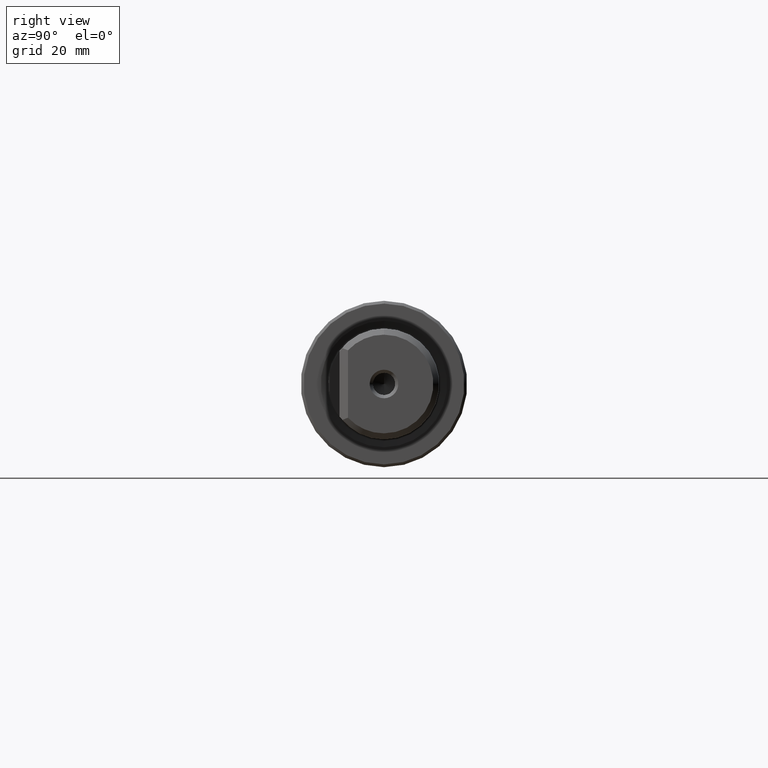
[diagram: clean part render]
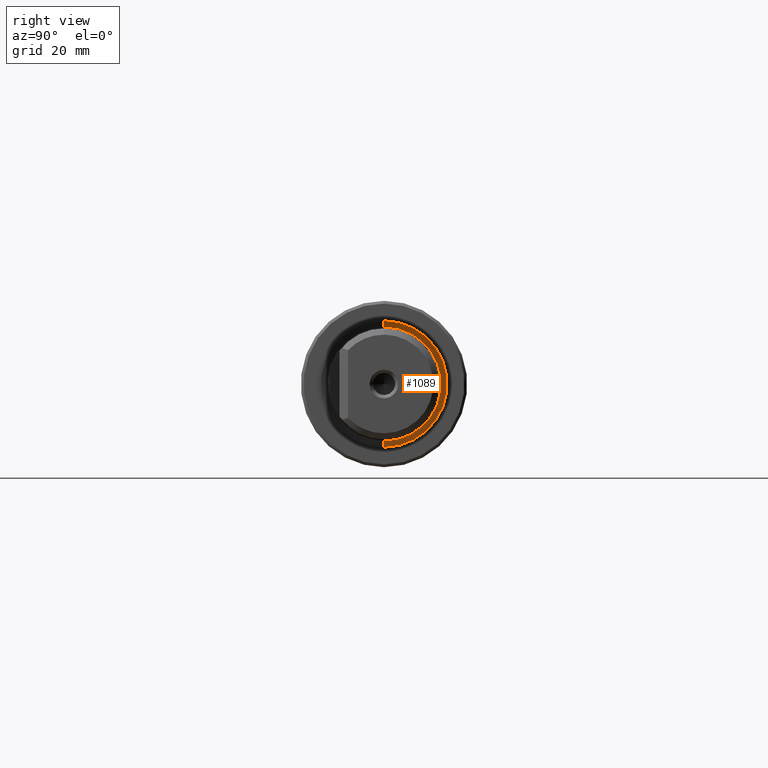
[diagram: same view with one face highlighted and labeled with its STEP entity id]
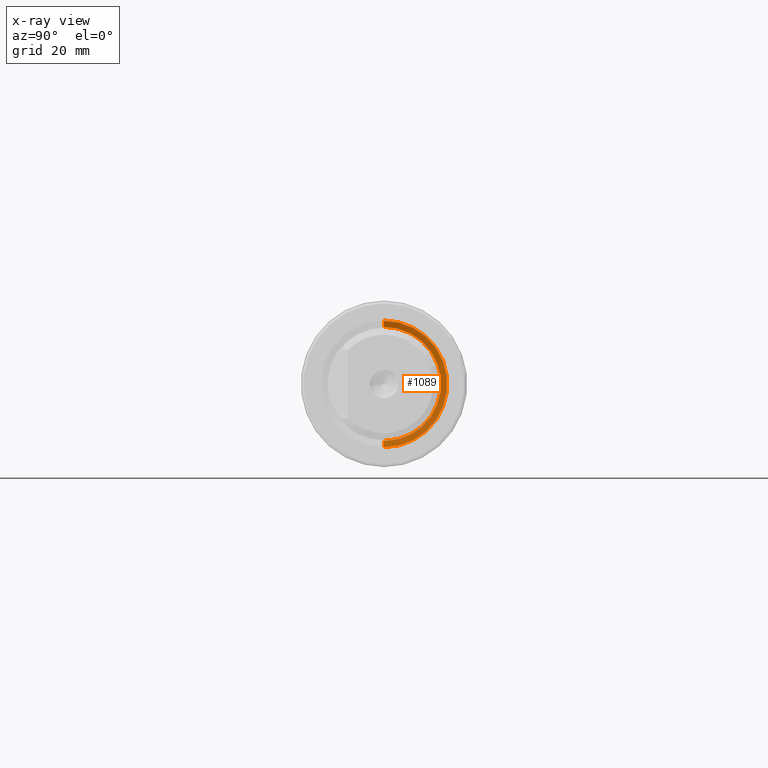
[diagram: x-ray of the same camera — body ghosted, the highlighted face saturated]
A machine part, right view. The second image highlights one B-rep face of the part: STEP entity #1089.
The next image is the same camera in x-ray: the body ghosted, the highlighted face saturated — about 0% of this face is hidden behind the body in this view.
In plain terms, the highlighted conical surface has half-angle 74.85 deg.
Its self-contained STEP definition (entity closure, byte-faithful):
#28 = CONICAL_SURFACE ( 'NONE', #63, 11.40000000000001100, 1.306370625903562300 ) ;
#63 = AXIS2_PLACEMENT_3D ( 'NONE', #396, #1207, #70 ) ;
#70 = DIRECTION ( 'NONE',  ( 0.0000000000000000000, 0.0000000000000000000, -1.000000000000000000 ) ) ;
#98 = AXIS2_PLACEMENT_3D ( 'NONE', #1172, #501, #406 ) ;
#129 = CIRCLE ( 'NONE', #928, 11.40000000000001100 ) ;
#166 = CARTESIAN_POINT ( 'NONE',  ( 74.15000000000000600, 0.0000000000000000000, -10.29203245983837400 ) ) ;
#236 = VERTEX_POINT ( 'NONE', #973 ) ;
#318 = DIRECTION ( 'NONE',  ( 0.0000000000000000000, 0.0000000000000000000, -1.000000000000000000 ) ) ;
#353 = EDGE_CURVE ( 'NONE', #1083, #236, #1205, .T. ) ;
#396 = CARTESIAN_POINT ( 'NONE',  ( 74.45000000000000300, 0.0000000000000000000, 0.0000000000000000000 ) ) ;
#406 = DIRECTION ( 'NONE',  ( 0.0000000000000000000, 0.0000000000000000000, -1.000000000000000000 ) ) ;
#463 = EDGE_LOOP ( 'NONE', ( #579, #494, #1050, #794 ) ) ;
#477 = EDGE_CURVE ( 'NONE', #1088, #563, #521, .T. ) ;
#480 = VECTOR ( 'NONE', #769, 999.9999999999998900 ) ;
#494 = ORIENTED_EDGE ( 'NONE', *, *, #627, .F. ) ;
#501 = DIRECTION ( 'NONE',  ( 1.000000000000000000, -0.0000000000000000000, -0.0000000000000000000 ) ) ;
#521 = LINE ( 'NONE', #571, #480 ) ;
#560 = EDGE_CURVE ( 'NONE', #236, #563, #129, .T. ) ;
#563 = VERTEX_POINT ( 'NONE', #974 ) ;
#571 = CARTESIAN_POINT ( 'NONE',  ( 74.45000000000000300, 1.396097351027984000E-015, 11.40000000000001100 ) ) ;
#579 = ORIENTED_EDGE ( 'NONE', *, *, #477, .F. ) ;
#627 = EDGE_CURVE ( 'NONE', #1083, #1088, #659, .T. ) ;
#659 = CIRCLE ( 'NONE', #98, 10.29203245983836900 ) ;
#769 = DIRECTION ( 'NONE',  ( 0.2613549732255691600, 1.182081451510059400E-016, 0.9652427559791693100 ) ) ;
#794 = ORIENTED_EDGE ( 'NONE', *, *, #560, .T. ) ;
#805 = CARTESIAN_POINT ( 'NONE',  ( 74.45000000000000300, 0.0000000000000000000, 0.0000000000000000000 ) ) ;
#928 = AXIS2_PLACEMENT_3D ( 'NONE', #805, #1196, #318 ) ;
#973 = CARTESIAN_POINT ( 'NONE',  ( 74.45000000000000300, 0.0000000000000000000, -11.40000000000001100 ) ) ;
#974 = CARTESIAN_POINT ( 'NONE',  ( 74.45000000000000300, 1.396097351027984000E-015, 11.40000000000001100 ) ) ;
#986 = CARTESIAN_POINT ( 'NONE',  ( 74.45000000000000300, 0.0000000000000000000, -11.40000000000001100 ) ) ;
#1050 = ORIENTED_EDGE ( 'NONE', *, *, #353, .T. ) ;
#1083 = VERTEX_POINT ( 'NONE', #166 ) ;
#1088 = VERTEX_POINT ( 'NONE', #1115 ) ;
#1089 = ADVANCED_FACE ( 'NONE', ( #1201 ), #28, .F. ) ;
#1091 = DIRECTION ( 'NONE',  ( 0.2613549732255691600, 0.0000000000000000000, -0.9652427559791693100 ) ) ;
#1115 = CARTESIAN_POINT ( 'NONE',  ( 74.15000000000000600, 1.260410460866172400E-015, 10.29203245983837400 ) ) ;
#1172 = CARTESIAN_POINT ( 'NONE',  ( 74.15000000000000600, 0.0000000000000000000, 0.0000000000000000000 ) ) ;
#1187 = VECTOR ( 'NONE', #1091, 999.9999999999998900 ) ;
#1196 = DIRECTION ( 'NONE',  ( 1.000000000000000000, -0.0000000000000000000, -0.0000000000000000000 ) ) ;
#1201 = FACE_OUTER_BOUND ( 'NONE', #463, .T. ) ;
#1205 = LINE ( 'NONE', #986, #1187 ) ;
#1207 = DIRECTION ( 'NONE',  ( 1.000000000000000000, -0.0000000000000000000, -0.0000000000000000000 ) ) ;